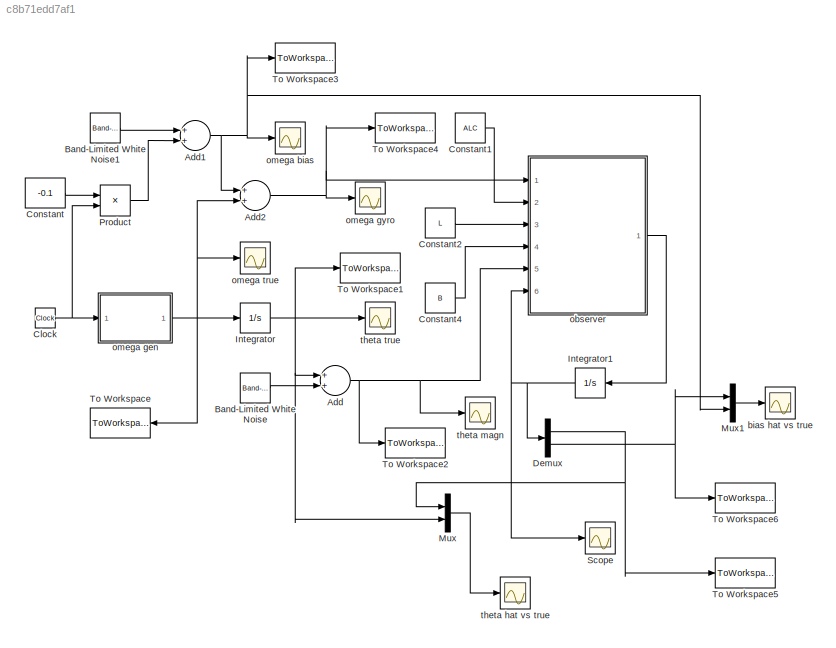
MODEL slx_c8b71edd7af1
KIND model
BLOCK [Sum] Add
  InputSameDT = off
  OutDataTypeStr = Inherit: Inherit via internal rule
  Ports = [2, 1]
  SaturateOnIntegerOverflow = off
BLOCK [Sum] Add1
  InputSameDT = off
  OutDataTypeStr = Inherit: Inherit via internal rule
  Ports = [2, 1]
  SaturateOnIntegerOverflow = off
BLOCK [Sum] Add2
  InputSameDT = off
  OutDataTypeStr = Inherit: Inherit via internal rule
  Ports = [2, 1]
  SaturateOnIntegerOverflow = off
BLOCK [Reference] Band-Limited White Noise  REF=simulink/Sources/Band-Limited
White Noise
  Cov = [0.00015]
  Ports = [0, 1]
  SourceBlock = simulink/Sources/Band-Limited\nWhite Noise
  SourceType = Band-Limited White Noise.
  Ts = 0.005
  VectorParams1D = on
  seed = [23341]
BLOCK [Reference] Band-Limited White Noise1  REF=simulink/Sources/Band-Limited
White Noise
  Cov = [0.0001]
  Ports = [0, 1]
  SourceBlock = simulink/Sources/Band-Limited\nWhite Noise
  SourceType = Band-Limited White Noise.
  Ts = 0.005
  VectorParams1D = on
  seed = [23341]
BLOCK [Clock] Clock
BLOCK [Constant] Constant
  Value = -0.1
BLOCK [Constant] Constant1
  Value = ALC
BLOCK [Constant] Constant2
  Value = L
BLOCK [Constant] Constant4
  Value = B
BLOCK [Demux] Demux
  DisplayOption = bar
  Outputs = 2
  Ports = [1, 2]
BLOCK [Integrator] Integrator
  Ports = [1, 1]
BLOCK [Integrator] Integrator1
  InitialCondition = [0;0]
  Ports = [1, 1]
BLOCK [Mux] Mux
  DisplayOption = bar
  Inputs = 2
  Ports = [2, 1]
BLOCK [Mux] Mux1
  DisplayOption = bar
  Inputs = 2
  Ports = [2, 1]
BLOCK [Product] Product
  InputSameDT = off
  OutDataTypeStr = Inherit: Inherit via internal rule
  Ports = [2, 1]
  RndMeth = Floor
  SaturateOnIntegerOverflow = off
BLOCK [Scope] Scope
  DataFormat = StructureWithTime
  Floating = off
  LimitDataPoints = off
  NumInputPorts = 1
  Ports = [1]
  SampleTime = 0
  SaveName = ScopeData5
  ShowLegends = off
BLOCK [ToWorkspace] To Workspace
  MaxDataPoints = inf
  Ports = [1]
  SampleTime = -1
  VariableName = o_t
BLOCK [ToWorkspace] To Workspace1
  MaxDataPoints = inf
  Ports = [1]
  SampleTime = -1
  VariableName = t_t
BLOCK [ToWorkspace] To Workspace2
  MaxDataPoints = inf
  Ports = [1]
  SampleTime = -1
  VariableName = y
BLOCK [ToWorkspace] To Workspace3
  MaxDataPoints = inf
  Ports = [1]
  SampleTime = -1
  VariableName = o_b
BLOCK [ToWorkspace] To Workspace4
  MaxDataPoints = inf
  Ports = [1]
  SampleTime = -1
  VariableName = o_g
BLOCK [ToWorkspace] To Workspace5
  MaxDataPoints = inf
  Ports = [1]
  SampleTime = -1
  VariableName = t_h
BLOCK [ToWorkspace] To Workspace6
  MaxDataPoints = inf
  Ports = [1]
  SampleTime = -1
  VariableName = b_h
BLOCK [Scope] bias hat vs true
  DataFormat = StructureWithTime
  Floating = off
  LimitDataPoints = off
  NumInputPorts = 1
  Ports = [1]
  SampleTime = 0
  SaveName = ScopeData7
  ShowLegends = off
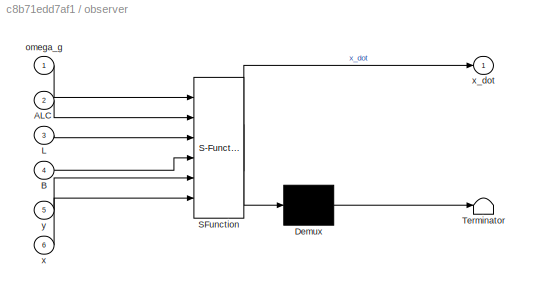
BLOCK [SubSystem] observer
  ErrorFcn = Stateflow.Translate.translate
  FunctionWithSeparateData = off
  MaskHideContents = off
  MinAlgLoopOccurrences = off
  Opaque = off
  PermitHierarchicalResolution = ExplicitOnly
  Ports = [6, 1]
  PropExecContextOutsideSubsystem = off
  RTWSystemCode = Auto
  RequestExecContextInheritance = off
  SFBlockType = MATLAB Function
  TreatAsAtomicUnit = on
BLOCK [Demux] observer/ Demux 
  Outputs = 1
  Ports = [1, 1]
BLOCK [S-Function] observer/ SFunction 
  EnableBusSupport = on
  FunctionName = sf_sfun
  PortCounts = [6 2]
  Ports = [6, 2]
  Tag = Stateflow S-Function car_sim2 1
BLOCK [Terminator] observer/ Terminator 
BLOCK [Inport] observer/ALC
  IconDisplay = Port number
  Port = 2
BLOCK [Inport] observer/B
  IconDisplay = Port number
  Port = 4
BLOCK [Inport] observer/L
  IconDisplay = Port number
  Port = 3
BLOCK [Inport] observer/omega_g
  IconDisplay = Port number
BLOCK [Inport] observer/x
  IconDisplay = Port number
  Port = 6
BLOCK [Outport] observer/x_dot
  IconDisplay = Port number
BLOCK [Inport] observer/y
  IconDisplay = Port number
  Port = 5
BLOCK [Scope] omega bias
  DataFormat = StructureWithTime
  Floating = off
  LimitDataPoints = off
  NumInputPorts = 1
  Ports = [1]
  SampleTime = 0
  ShowLegends = off
  ZoomMode = yonly
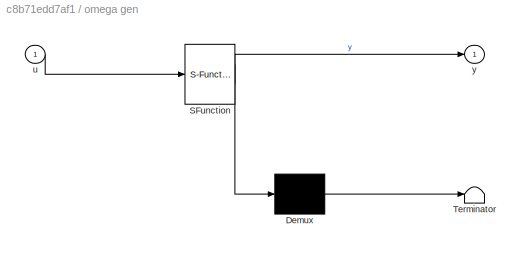
BLOCK [SubSystem] omega gen
  ErrorFcn = Stateflow.Translate.translate
  FunctionWithSeparateData = off
  MaskHideContents = off
  MinAlgLoopOccurrences = off
  Opaque = off
  PermitHierarchicalResolution = ExplicitOnly
  Ports = [1, 1]
  PropExecContextOutsideSubsystem = off
  RTWSystemCode = Auto
  RequestExecContextInheritance = off
  SFBlockType = MATLAB Function
  TreatAsAtomicUnit = on
BLOCK [Demux] omega gen/ Demux 
  Outputs = 1
  Ports = [1, 1]
BLOCK [S-Function] omega gen/ SFunction 
  EnableBusSupport = on
  FunctionName = sf_sfun
  PortCounts = [1 2]
  Ports = [1, 2]
  Tag = Stateflow S-Function car_sim2 2
BLOCK [Terminator] omega gen/ Terminator 
BLOCK [Inport] omega gen/u
  IconDisplay = Port number
BLOCK [Outport] omega gen/y
  IconDisplay = Port number
BLOCK [Scope] omega gyro
  DataFormat = StructureWithTime
  Floating = off
  LimitDataPoints = off
  NumInputPorts = 1
  Ports = [1]
  SampleTime = 0
  SaveName = ScopeData4
  ShowLegends = off
  ZoomMode = yonly
BLOCK [Scope] omega true
  DataFormat = StructureWithTime
  Floating = off
  LimitDataPoints = off
  NumInputPorts = 1
  Ports = [1]
  SampleTime = 0
  SaveName = ScopeData1
  ShowLegends = off
BLOCK [Scope] theta hat vs true
  DataFormat = StructureWithTime
  Floating = off
  LimitDataPoints = off
  NumInputPorts = 1
  Ports = [1]
  SampleTime = 0
  SaveName = ScopeData6
  ShowLegends = off
BLOCK [Scope] theta magn
  DataFormat = StructureWithTime
  Floating = off
  LimitDataPoints = off
  NumInputPorts = 1
  Ports = [1]
  SampleTime = 0
  SaveName = ScopeData3
  ShowLegends = off
  ZoomMode = yonly
BLOCK [Scope] theta true
  DataFormat = StructureWithTime
  Floating = off
  LimitDataPoints = off
  NumInputPorts = 1
  Ports = [1]
  SampleTime = 0
  SaveName = ScopeData2
  ShowLegends = off
NET Add1:1 -> Add2:1, Mux1:2, To Workspace3:1, omega bias:1
NET Add2:1 -> To Workspace4:1, observer:1, omega gyro:1
NET Add:1 -> To Workspace2:1, observer:5, theta magn:1
LINE Band-Limited White Noise1:1 -> Add1:1
LINE Band-Limited White Noise:1 -> Add:2
NET Clock:1 -> Product:2, omega gen:1
LINE Constant1:1 -> observer:2
LINE Constant2:1 -> observer:3
LINE Constant4:1 -> observer:4
LINE Constant:1 -> Product:1
NET Demux:1 -> Mux:1, To Workspace5:1
NET Demux:2 -> Mux1:1, To Workspace6:1
NET Integrator1:1 -> Demux:1, Scope:1, observer:6
NET Integrator:1 -> Add:1, Mux:2, To Workspace1:1, theta true:1
LINE Mux1:1 -> bias hat vs true:1
LINE Mux:1 -> theta hat vs true:1
LINE Product:1 -> Add1:2
LINE observer:1 -> Integrator1:1
NET omega gen:1 -> Add2:2, Integrator:1, To Workspace:1, omega true:1
note: NET lines group one-source signal fan-out (src -> all destinations, sorted); 1:1 wires keep LINE
